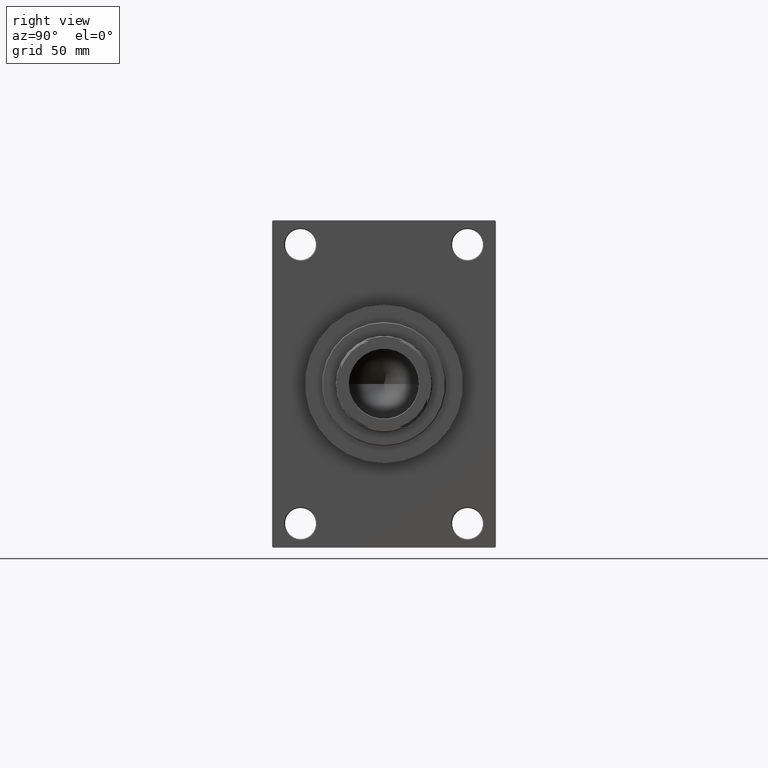
[diagram: clean part render]
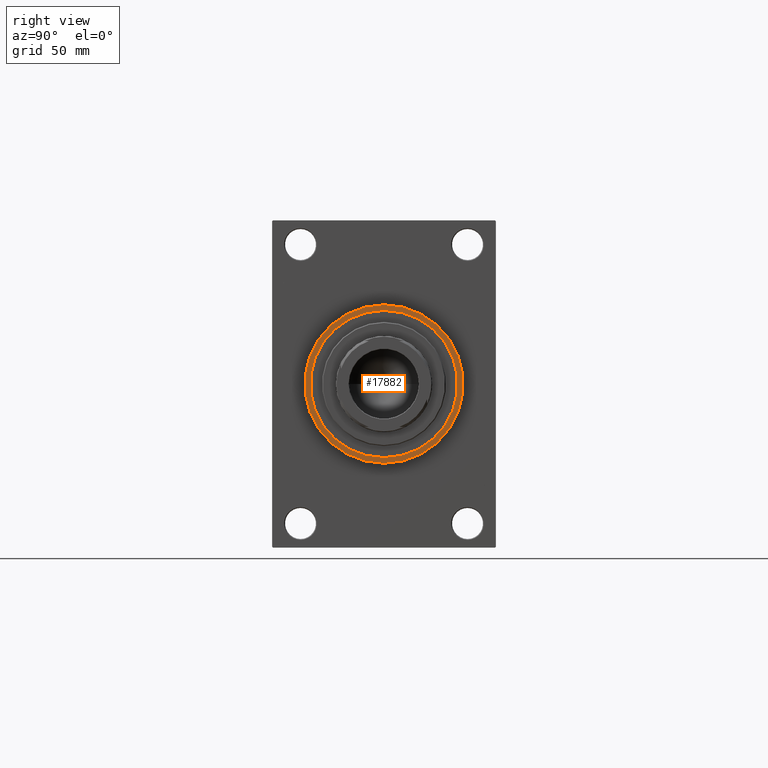
[diagram: same view with one face highlighted and labeled with its STEP entity id]
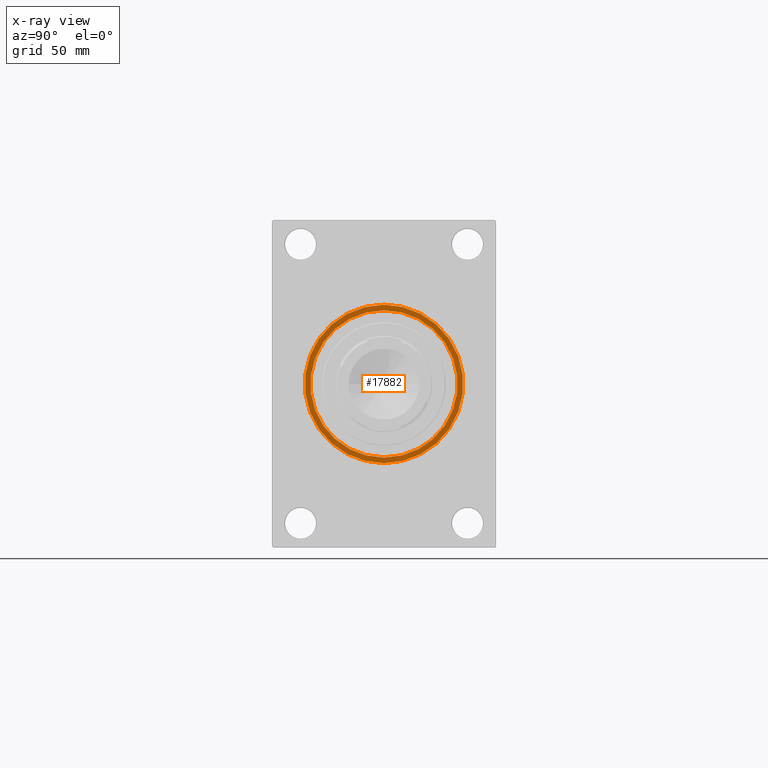
[diagram: x-ray of the same camera — body ghosted, the highlighted face saturated]
A machine part, right view. The second image highlights one B-rep face of the part: STEP entity #17882.
The next image is the same camera in x-ray: the body ghosted, the highlighted face saturated — about 0% of this face is hidden behind the body in this view.
In plain terms, the highlighted planar face has unit normal (1, 0, 0).
Its self-contained STEP definition (entity closure, byte-faithful):
#2288 = ORIENTED_EDGE ( 'NONE', *, *, #29783, .F. ) ;
#2961 = ORIENTED_EDGE ( 'NONE', *, *, #19561, .T. ) ;
#5487 = ORIENTED_EDGE ( 'NONE', *, *, #7806, .F. ) ;
#7806 = EDGE_CURVE ( 'NONE', #15520, #23120, #47614, .T. ) ;
#8590 = EDGE_LOOP ( 'NONE', ( #5487, #2288 ) ) ;
#10178 = DIRECTION ( 'NONE',  ( 0.000000000000000000, 0.000000000000000000, -1.000000000000000000 ) ) ;
#14317 = CARTESIAN_POINT ( 'NONE',  ( 302.0000000000000000, 0.000000000000000000, 0.000000000000000000 ) ) ;
#15520 = VERTEX_POINT ( 'NONE', #35134 ) ;
#16265 = AXIS2_PLACEMENT_3D ( 'NONE', #33582, #26581, #22723 ) ;
#17422 = CARTESIAN_POINT ( 'NONE',  ( 302.0000000000000000, 0.000000000000000000, 0.000000000000000000 ) ) ;
#17882 = ADVANCED_FACE ( 'NONE', ( #38033, #30088 ), #45281, .T. ) ;
#18493 = VERTEX_POINT ( 'NONE', #22519 ) ;
#19406 = AXIS2_PLACEMENT_3D ( 'NONE', #17422, #39377, #10178 ) ;
#19561 = EDGE_CURVE ( 'NONE', #24475, #18493, #25577, .T. ) ;
#22123 = DIRECTION ( 'NONE',  ( 0.000000000000000000, 0.000000000000000000, -1.000000000000000000 ) ) ;
#22519 = CARTESIAN_POINT ( 'NONE',  ( 302.0000000000000000, 5.633375276077824704E-15, -46.00000000000000000 ) ) ;
#22723 = DIRECTION ( 'NONE',  ( 0.000000000000000000, 0.000000000000000000, -1.000000000000000000 ) ) ;
#23120 = VERTEX_POINT ( 'NONE', #44714 ) ;
#24475 = VERTEX_POINT ( 'NONE', #45347 ) ;
#25428 = DIRECTION ( 'NONE',  ( 0.000000000000000000, 0.000000000000000000, -1.000000000000000000 ) ) ;
#25577 = CIRCLE ( 'NONE', #19406, 46.00000000000000000 ) ;
#26581 = DIRECTION ( 'NONE',  ( 1.000000000000000000, 0.000000000000000000, 0.000000000000000000 ) ) ;
#27543 = EDGE_CURVE ( 'NONE', #18493, #24475, #44727, .T. ) ;
#27793 = AXIS2_PLACEMENT_3D ( 'NONE', #36129, #29118, #22123 ) ;
#29039 = DIRECTION ( 'NONE',  ( 1.000000000000000000, 0.000000000000000000, 0.000000000000000000 ) ) ;
#29118 = DIRECTION ( 'NONE',  ( 1.000000000000000000, 0.000000000000000000, 0.000000000000000000 ) ) ;
#29783 = EDGE_CURVE ( 'NONE', #23120, #15520, #37083, .T. ) ;
#30088 = FACE_OUTER_BOUND ( 'NONE', #37963, .T. ) ;
#31991 = ORIENTED_EDGE ( 'NONE', *, *, #27543, .T. ) ;
#33582 = CARTESIAN_POINT ( 'NONE',  ( 302.0000000000000000, 0.000000000000000000, 0.000000000000000000 ) ) ;
#33965 = DIRECTION ( 'NONE',  ( 1.000000000000000000, 0.000000000000000000, 0.000000000000000000 ) ) ;
#35134 = CARTESIAN_POINT ( 'NONE',  ( 302.0000000000000000, 0.000000000000000000, -42.75000000000000000 ) ) ;
#36129 = CARTESIAN_POINT ( 'NONE',  ( 302.0000000000000000, 0.000000000000000000, 0.000000000000000000 ) ) ;
#36317 = AXIS2_PLACEMENT_3D ( 'NONE', #44811, #33965, #41184 ) ;
#37083 = CIRCLE ( 'NONE', #16265, 42.75000000000000000 ) ;
#37963 = EDGE_LOOP ( 'NONE', ( #2961, #31991 ) ) ;
#38033 = FACE_BOUND ( 'NONE', #8590, .T. ) ;
#39150 = AXIS2_PLACEMENT_3D ( 'NONE', #14317, #29039, #25428 ) ;
#39377 = DIRECTION ( 'NONE',  ( 1.000000000000000000, 0.000000000000000000, 0.000000000000000000 ) ) ;
#41184 = DIRECTION ( 'NONE',  ( 0.000000000000000000, 0.000000000000000000, -1.000000000000000000 ) ) ;
#44714 = CARTESIAN_POINT ( 'NONE',  ( 302.0000000000000000, 5.235365066354935472E-15, 42.75000000000000000 ) ) ;
#44727 = CIRCLE ( 'NONE', #27793, 46.00000000000000000 ) ;
#44811 = CARTESIAN_POINT ( 'NONE',  ( 302.0000000000000000, 0.000000000000000000, 0.000000000000000000 ) ) ;
#45281 = PLANE ( 'NONE',  #36317 ) ;
#45347 = CARTESIAN_POINT ( 'NONE',  ( 302.0000000000000000, 0.000000000000000000, 46.00000000000000000 ) ) ;
#47614 = CIRCLE ( 'NONE', #39150, 42.75000000000000000 ) ;